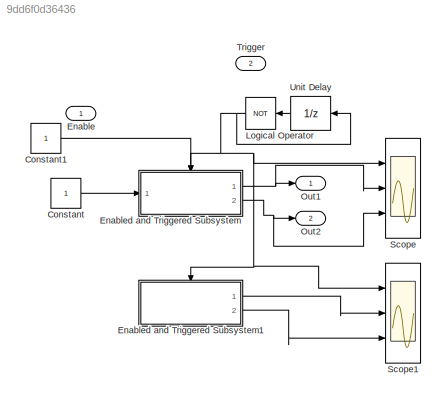
MODEL slx_9dd6f0d36436
KIND model
CONFIG AbsTol = auto
CONFIG FixedStep = 1
CONFIG MaxStep = auto
CONFIG MinStep = auto
CONFIG RelTol = 1e-3
CONFIG SampleTimeConstraint = Unconstrained
CONFIG Solver = FixedStepDiscrete
CONFIG SolverMode = SingleTasking
CONFIG SolverName = FixedStepDiscrete
CONFIG StartTime = 0.0
CONFIG StopTime = 10.0
BLOCK [Constant] Constant
BLOCK [Constant] Constant1
  OutDataTypeStr = boolean
BLOCK [Inport] Enable
  IconDisplay = Port number
  OutDataTypeStr = boolean
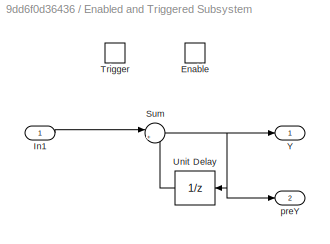
BLOCK [SubSystem] Enabled and Triggered Subsystem
  Ports = [1, 2, 1, 1]
  RequestExecContextInheritance = off
  TreatAsAtomicUnit = on
  Variant = off
BLOCK [EnablePort] Enabled and Triggered Subsystem/Enable
  Ports = []
  StatesWhenEnabling = reset
BLOCK [Inport] Enabled and Triggered Subsystem/In1
  IconDisplay = Port number
BLOCK [Sum] Enabled and Triggered Subsystem/Sum
  IconShape = round
  InputSameDT = off
  Inputs = |++
  OutDataTypeStr = Inherit: Inherit via internal rule
  Ports = [2, 1]
  SaturateOnIntegerOverflow = off
BLOCK [TriggerPort] Enabled and Triggered Subsystem/Trigger
  Ports = []
  StatesWhenEnabling = held
BLOCK [UnitDelay] Enabled and Triggered Subsystem/Unit Delay
  InputProcessing = Elements as channels (sample based)
  SampleTime = -1
BLOCK [Outport] Enabled and Triggered Subsystem/Y
  IconDisplay = Port number
  InitialOutput = 10
  OutputWhenDisabled = reset
BLOCK [Outport] Enabled and Triggered Subsystem/preY
  IconDisplay = Port number
  InitialOutput = 10
  OutputWhenDisabled = reset
  Port = 2
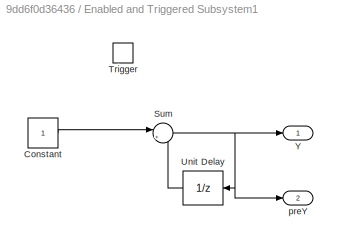
BLOCK [SubSystem] Enabled and Triggered Subsystem1
  Ports = [0, 2, 0, 1]
  RequestExecContextInheritance = off
  TreatAsAtomicUnit = on
  Variant = off
BLOCK [Constant] Enabled and Triggered Subsystem1/Constant
BLOCK [Sum] Enabled and Triggered Subsystem1/Sum
  IconShape = round
  InputSameDT = off
  Inputs = |++
  OutDataTypeStr = Inherit: Inherit via internal rule
  Ports = [2, 1]
  SaturateOnIntegerOverflow = off
BLOCK [TriggerPort] Enabled and Triggered Subsystem1/Trigger
  Ports = []
  StatesWhenEnabling = held
BLOCK [UnitDelay] Enabled and Triggered Subsystem1/Unit Delay
  InputProcessing = Elements as channels (sample based)
  SampleTime = -1
BLOCK [Outport] Enabled and Triggered Subsystem1/Y
  IconDisplay = Port number
  InitialOutput = 10
  OutputWhenDisabled = reset
BLOCK [Outport] Enabled and Triggered Subsystem1/preY
  IconDisplay = Port number
  InitialOutput = 10
  OutputWhenDisabled = reset
  Port = 2
BLOCK [Logic] Logical Operator
  AllPortsSameDT = off
  Operator = NOT
  OutDataTypeStr = boolean
  Ports = [1, 1]
BLOCK [Outport] Out1
  IconDisplay = Port number
BLOCK [Outport] Out2
  IconDisplay = Port number
  Port = 2
BLOCK [Scope] Scope
  DataFormat = StructureWithTime
  Decimation = 1
  Grid = on
  LimitDataPoints = off
  MaxDataPoints = 5000
  NumInputPorts = 3
  Ports = [3]
  SampleInput = off
  SampleTime = -1
  SaveName = ScopeData
  SaveToWorkspace = off
  ShowLegends = off
  TickLabels = OneTimeTick
  TimeRange = auto
  YMax = 1.125~11.125~11.125
  YMin = -0.125~-0.125~-0.125
  ZoomMode = on
BLOCK [Scope] Scope1
  DataFormat = StructureWithTime
  Decimation = 1
  Grid = on
  LimitDataPoints = off
  MaxDataPoints = 5000
  NumInputPorts = 3
  Ports = [3]
  SampleInput = off
  SampleTime = -1
  SaveName = ScopeData1
  SaveToWorkspace = off
  ShowLegends = off
  TickLabels = OneTimeTick
  TimeRange = auto
  YMax = 1.125~11.125~11.125
  YMin = -0.125~-0.125~-0.125
  ZoomMode = on
BLOCK [Inport] Trigger
  IconDisplay = Port number
  OutDataTypeStr = boolean
  Port = 2
BLOCK [UnitDelay] Unit Delay
  InitialCondition = true
  InputProcessing = Elements as channels (sample based)
  SampleTime = -1
LINE Constant1:1 -> Enabled and Triggered Subsystem:enable
LINE Constant:1 -> Enabled and Triggered Subsystem:1
LINE Enabled and Triggered Subsystem/In1:1 -> Enabled and Triggered Subsystem/Sum:1
NET Enabled and Triggered Subsystem/Sum:1 -> Enabled and Triggered Subsystem/Unit Delay:1, Enabled and Triggered Subsystem/Y:1, Enabled and Triggered Subsystem/preY:1
LINE Enabled and Triggered Subsystem/Unit Delay:1 -> Enabled and Triggered Subsystem/Sum:2
LINE Enabled and Triggered Subsystem1/Constant:1 -> Enabled and Triggered Subsystem1/Sum:1
NET Enabled and Triggered Subsystem1/Sum:1 -> Enabled and Triggered Subsystem1/Unit Delay:1, Enabled and Triggered Subsystem1/Y:1, Enabled and Triggered Subsystem1/preY:1
LINE Enabled and Triggered Subsystem1/Unit Delay:1 -> Enabled and Triggered Subsystem1/Sum:2
LINE Enabled and Triggered Subsystem1:1 -> Scope1:2
LINE Enabled and Triggered Subsystem1:2 -> Scope1:3
NET Enabled and Triggered Subsystem:1 -> Out1:1, Scope:2
NET Enabled and Triggered Subsystem:2 -> Out2:1, Scope:3
NET Logical Operator:1 -> Enabled and Triggered Subsystem1:trigger, Enabled and Triggered Subsystem:trigger, Scope1:1, Scope:1, Unit Delay:1
LINE Unit Delay:1 -> Logical Operator:1
note: NET lines group one-source signal fan-out (src -> all destinations, sorted); 1:1 wires keep LINE
